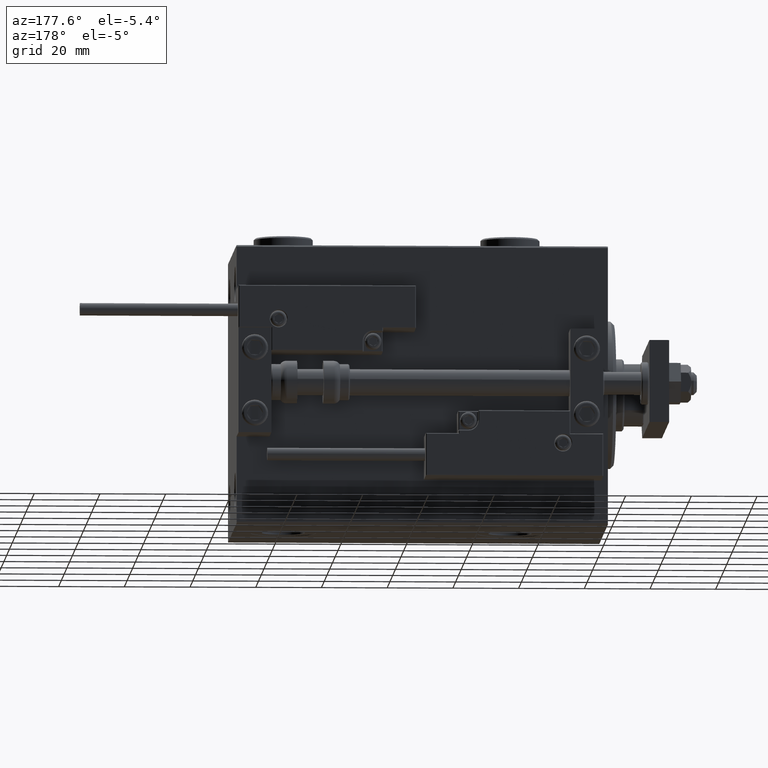
[diagram: clean part render]
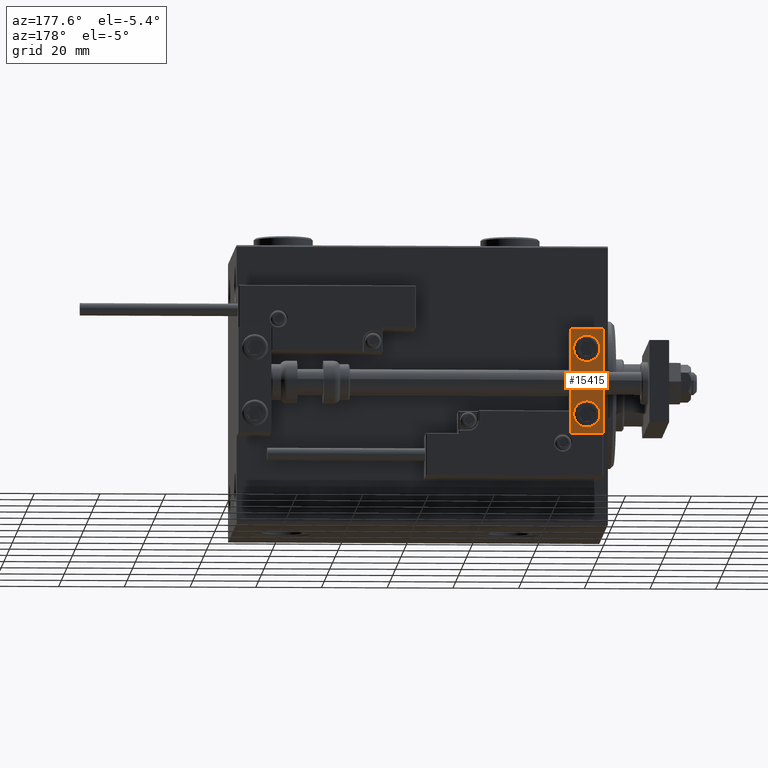
[diagram: same view with one face highlighted and labeled with its STEP entity id]
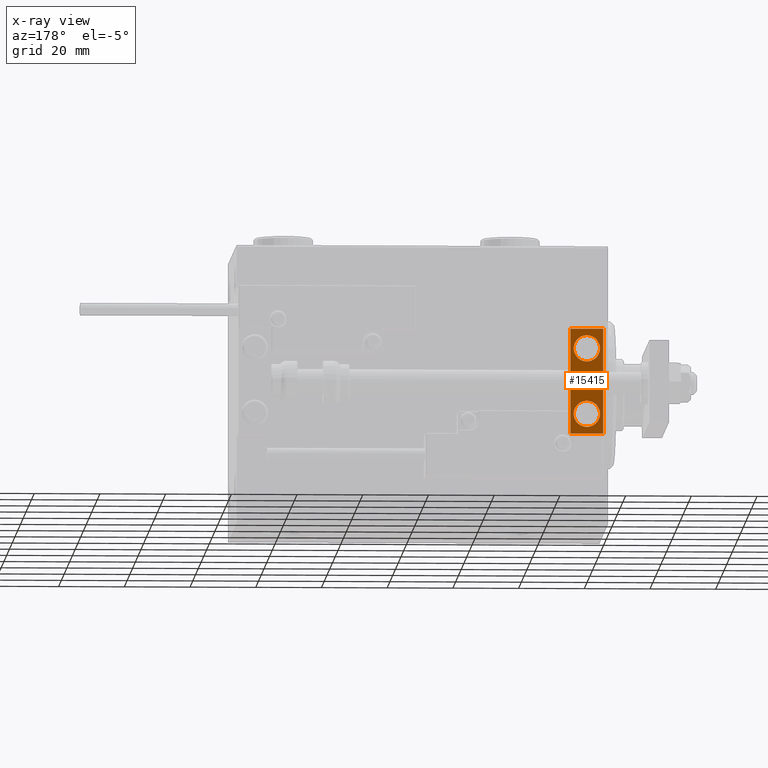
[diagram: x-ray of the same camera — body ghosted, the highlighted face saturated]
A machine part, auxiliary view. The second image highlights one B-rep face of the part: STEP entity #15415.
The next image is the same camera in x-ray: the body ghosted, the highlighted face saturated — about 0% of this face is hidden behind the body in this view.
In plain terms, the highlighted planar face has unit normal (-0, 1, 0).
Its self-contained STEP definition (entity closure, byte-faithful):
#2359 = DIRECTION ( 'NONE',  ( 1.848892746611746419E-32, -1.000000000000000000, 6.616381192988677562E-17 ) ) ;
#2732 = LINE ( 'NONE', #6195, #17374 ) ;
#3344 = ORIENTED_EDGE ( 'NONE', *, *, #37115, .T. ) ;
#4239 = CARTESIAN_POINT ( 'NONE',  ( 5.000000000000001776, 6.999999999999999112, -14.00000000000000178 ) ) ;
#4318 = ORIENTED_EDGE ( 'NONE', *, *, #25774, .T. ) ;
#5177 = VERTEX_POINT ( 'NONE', #24522 ) ;
#6195 = CARTESIAN_POINT ( 'NONE',  ( 10.00000000000000000, 7.000000000000000000, -16.00000000000000711 ) ) ;
#6483 = VERTEX_POINT ( 'NONE', #26261 ) ;
#7399 = DIRECTION ( 'NONE',  ( 0.000000000000000000, 1.000000000000000000, -6.065466699219605527E-17 ) ) ;
#7422 = CIRCLE ( 'NONE', #43079, 4.000000000000000000 ) ;
#7608 = CIRCLE ( 'NONE', #46655, 4.000000000000000888 ) ;
#7921 = FACE_BOUND ( 'NONE', #46475, .T. ) ;
#8432 = VERTEX_POINT ( 'NONE', #25950 ) ;
#8711 = PLANE ( 'NONE',  #50335 ) ;
#9684 = VECTOR ( 'NONE', #52020, 1000.000000000000000 ) ;
#12625 = VERTEX_POINT ( 'NONE', #50112 ) ;
#14468 = EDGE_LOOP ( 'NONE', ( #4318, #3344 ) ) ;
#14625 = ORIENTED_EDGE ( 'NONE', *, *, #33828, .F. ) ;
#14690 = EDGE_CURVE ( 'NONE', #16037, #31261, #35816, .T. ) ;
#15415 = ADVANCED_FACE ( 'NONE', ( #52299, #7921, #24123 ), #8711, .T. ) ;
#16037 = VERTEX_POINT ( 'NONE', #31394 ) ;
#17374 = VECTOR ( 'NONE', #31175, 1000.000000000000000 ) ;
#17376 = EDGE_CURVE ( 'NONE', #6483, #12625, #36636, .T. ) ;
#18300 = CIRCLE ( 'NONE', #50570, 4.000000000000000888 ) ;
#20134 = DIRECTION ( 'NONE',  ( 0.000000000000000000, 0.000000000000000000, 1.000000000000000000 ) ) ;
#20312 = CARTESIAN_POINT ( 'NONE',  ( 10.00000000000000000, 7.000000000000000000, -16.00000000000000711 ) ) ;
#21392 = EDGE_CURVE ( 'NONE', #44538, #5177, #18300, .T. ) ;
#21731 = EDGE_LOOP ( 'NONE', ( #39709, #37926, #36452, #50614 ) ) ;
#23415 = LINE ( 'NONE', #47095, #31063 ) ;
#24123 = FACE_BOUND ( 'NONE', #14468, .T. ) ;
#24522 = CARTESIAN_POINT ( 'NONE',  ( 5.000000000000000888, 6.999999999999999112, -6.000000000000000888 ) ) ;
#24773 = VERTEX_POINT ( 'NONE', #45083 ) ;
#24906 = CARTESIAN_POINT ( 'NONE',  ( 10.00000000000000000, 7.000000000000000000, 15.99999999999999289 ) ) ;
#25774 = EDGE_CURVE ( 'NONE', #24773, #8432, #7422, .T. ) ;
#25950 = CARTESIAN_POINT ( 'NONE',  ( 5.000000000000001776, 7.000000000000000888, 6.000000000000000888 ) ) ;
#26261 = CARTESIAN_POINT ( 'NONE',  ( 0.000000000000000000, 7.000000000000000000, 15.99999999999999289 ) ) ;
#26997 = ORIENTED_EDGE ( 'NONE', *, *, #21392, .F. ) ;
#27843 = CARTESIAN_POINT ( 'NONE',  ( 10.00000000000000000, 7.000000000000000000, 15.99999999999999289 ) ) ;
#28398 = DIRECTION ( 'NONE',  ( 0.000000000000000000, 0.000000000000000000, -1.000000000000000000 ) ) ;
#28803 = CARTESIAN_POINT ( 'NONE',  ( 5.000000000000000888, 7.000000000000000888, 10.00000000000000178 ) ) ;
#29165 = DIRECTION ( 'NONE',  ( -0.000000000000000000, 1.000000000000000000, 0.000000000000000000 ) ) ;
#30695 = AXIS2_PLACEMENT_3D ( 'NONE', #42501, #2359, #51784 ) ;
#31063 = VECTOR ( 'NONE', #39630, 1000.000000000000000 ) ;
#31175 = DIRECTION ( 'NONE',  ( -1.000000000000000000, -0.000000000000000000, -0.000000000000000000 ) ) ;
#31261 = VERTEX_POINT ( 'NONE', #20312 ) ;
#31394 = CARTESIAN_POINT ( 'NONE',  ( 10.00000000000000000, 7.000000000000000000, 15.99999999999999289 ) ) ;
#31852 = CARTESIAN_POINT ( 'NONE',  ( 5.000000000000000888, 6.999999999999999112, -10.00000000000000178 ) ) ;
#32523 = DIRECTION ( 'NONE',  ( 1.848892746611746419E-32, -1.000000000000000000, 6.616381192988677562E-17 ) ) ;
#33120 = CARTESIAN_POINT ( 'NONE',  ( 5.000000000000000888, 6.999999999999999112, -10.00000000000000178 ) ) ;
#33828 = EDGE_CURVE ( 'NONE', #5177, #44538, #7608, .T. ) ;
#35816 = LINE ( 'NONE', #27843, #9684 ) ;
#36452 = ORIENTED_EDGE ( 'NONE', *, *, #14690, .T. ) ;
#36636 = LINE ( 'NONE', #39577, #37663 ) ;
#37115 = EDGE_CURVE ( 'NONE', #8432, #24773, #40031, .T. ) ;
#37555 = DIRECTION ( 'NONE',  ( 0.000000000000000000, 0.000000000000000000, 1.000000000000000000 ) ) ;
#37663 = VECTOR ( 'NONE', #28398, 1000.000000000000000 ) ;
#37926 = ORIENTED_EDGE ( 'NONE', *, *, #51262, .F. ) ;
#39577 = CARTESIAN_POINT ( 'NONE',  ( 0.000000000000000000, 7.000000000000000000, 15.99999999999999289 ) ) ;
#39630 = DIRECTION ( 'NONE',  ( -1.000000000000000000, -0.000000000000000000, -0.000000000000000000 ) ) ;
#39709 = ORIENTED_EDGE ( 'NONE', *, *, #17376, .F. ) ;
#40031 = CIRCLE ( 'NONE', #30695, 4.000000000000000000 ) ;
#42501 = CARTESIAN_POINT ( 'NONE',  ( 5.000000000000000888, 7.000000000000000888, 10.00000000000000178 ) ) ;
#43079 = AXIS2_PLACEMENT_3D ( 'NONE', #28803, #32523, #37555 ) ;
#44538 = VERTEX_POINT ( 'NONE', #4239 ) ;
#45083 = CARTESIAN_POINT ( 'NONE',  ( 5.000000000000000888, 7.000000000000000888, 14.00000000000000178 ) ) ;
#45116 = EDGE_CURVE ( 'NONE', #31261, #12625, #2732, .T. ) ;
#45876 = DIRECTION ( 'NONE',  ( 0.000000000000000000, 1.000000000000000000, -6.065466699219605527E-17 ) ) ;
#46475 = EDGE_LOOP ( 'NONE', ( #14625, #26997 ) ) ;
#46655 = AXIS2_PLACEMENT_3D ( 'NONE', #31852, #7399, #20134 ) ;
#47095 = CARTESIAN_POINT ( 'NONE',  ( 10.00000000000000000, 7.000000000000000000, 15.99999999999999289 ) ) ;
#49107 = DIRECTION ( 'NONE',  ( 0.000000000000000000, -0.000000000000000000, 1.000000000000000000 ) ) ;
#49852 = DIRECTION ( 'NONE',  ( 0.000000000000000000, 0.000000000000000000, 1.000000000000000000 ) ) ;
#50112 = CARTESIAN_POINT ( 'NONE',  ( 0.000000000000000000, 7.000000000000000000, -16.00000000000000711 ) ) ;
#50335 = AXIS2_PLACEMENT_3D ( 'NONE', #24906, #29165, #49107 ) ;
#50570 = AXIS2_PLACEMENT_3D ( 'NONE', #33120, #45876, #49852 ) ;
#50614 = ORIENTED_EDGE ( 'NONE', *, *, #45116, .T. ) ;
#51262 = EDGE_CURVE ( 'NONE', #16037, #6483, #23415, .T. ) ;
#51784 = DIRECTION ( 'NONE',  ( 0.000000000000000000, 0.000000000000000000, 1.000000000000000000 ) ) ;
#52020 = DIRECTION ( 'NONE',  ( 0.000000000000000000, 0.000000000000000000, -1.000000000000000000 ) ) ;
#52299 = FACE_OUTER_BOUND ( 'NONE', #21731, .T. ) ;